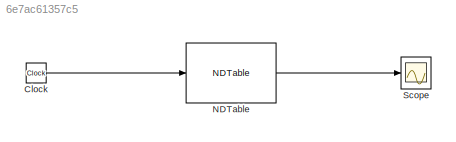
MODEL slx_6e7ac61357c5
KIND model
BLOCK [Clock] Clock
BLOCK [Reference] NDTable  REF=NDTable/NDTable
  Ports = [1, 1]
  SourceBlock = NDTable/NDTable
  dataset = '/y'
  extrap_method = Linear
  filename = 'sine.sdf'
  interp_method = Linear
BLOCK [Scope] Scope
  Floating = off
  NumInputPorts = 1
  Ports = [1]
  ShowLegends = off
LINE Clock:1 -> NDTable:1
LINE NDTable:1 -> Scope:1
